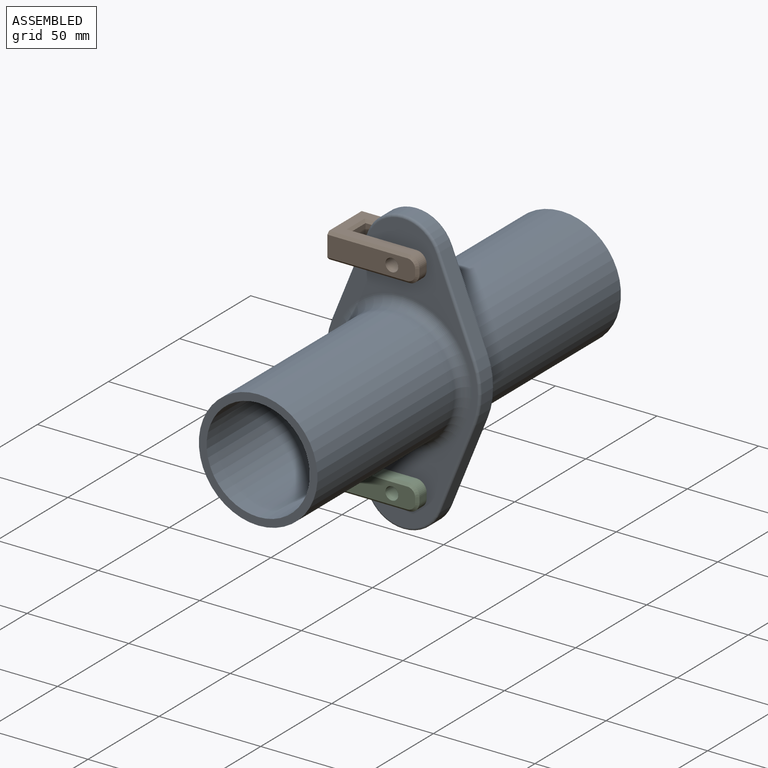
[diagram: assembled view]
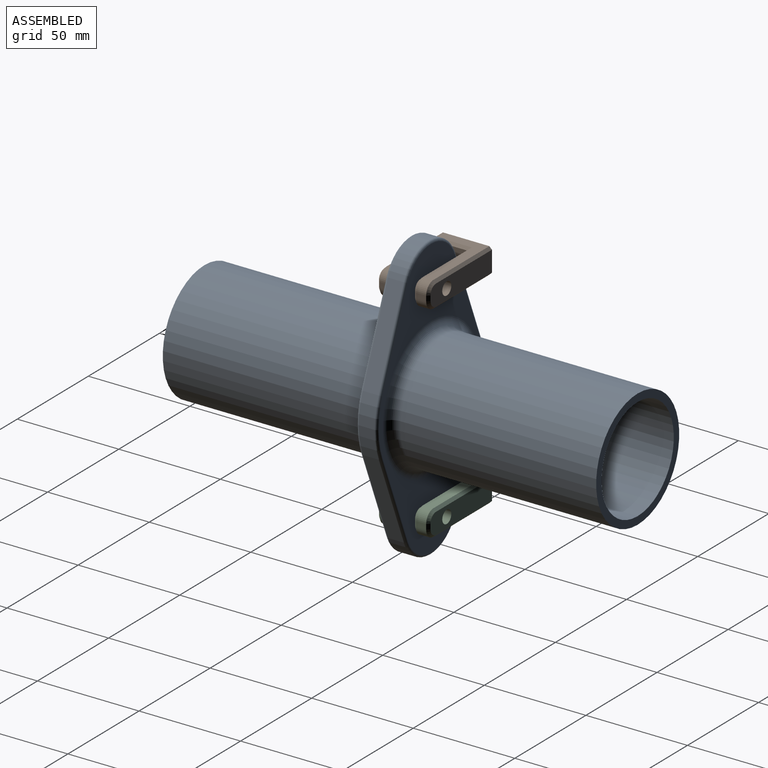
[diagram: assembled view, second angle]
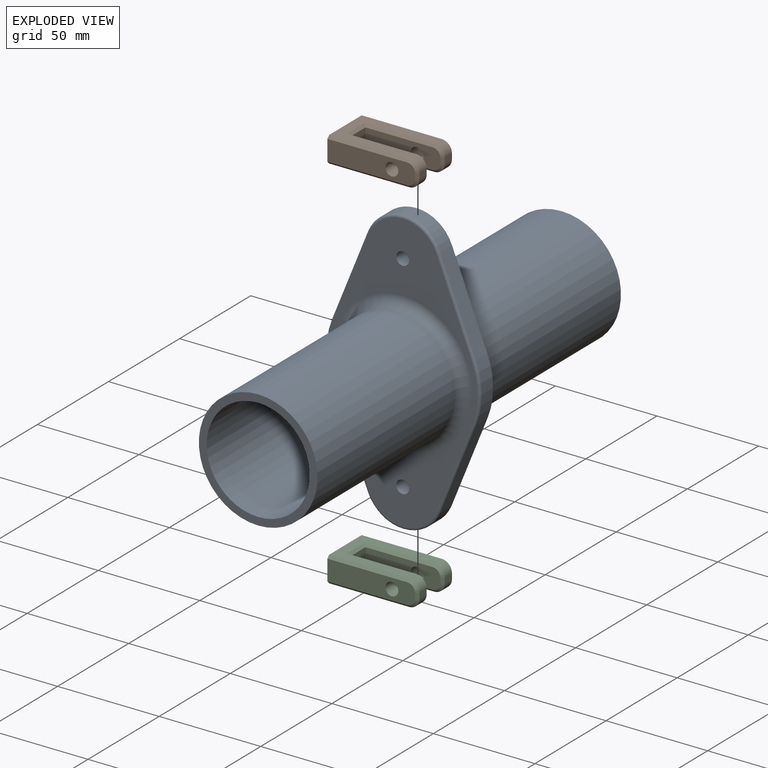
[diagram: exploded view]
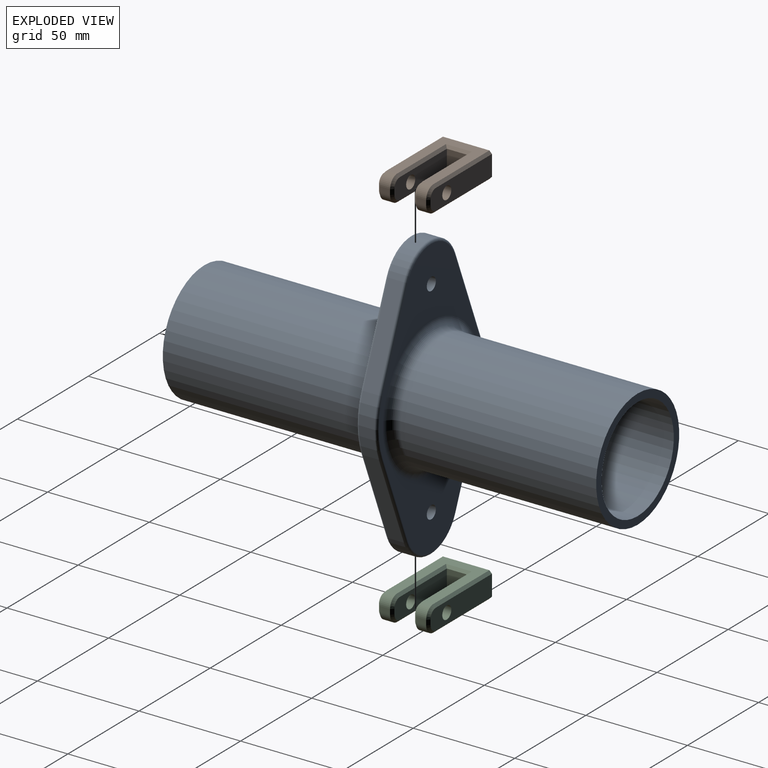
[diagram: exploded view, second angle]
ASSEMBLY  parts=3 mates=2
PART A: 35 faces, bbox 82.5x213.4x142.8 mm
  f0: plane 43.66x17.66mm, normal (-0.93,0,0.37), area 358.8mm2, adj f1,f10,f14,f22
  f1: cylinder r=38.1mm len=28.58mm, axis (0,1,0), area 223.2mm2, adj f0,f2,f16,f24
  f2: plane 43.66x17.66mm, normal (-0.93,0,-0.37), area 358.8mm2, adj f1,f3,f18,f26
  f3: cylinder r=19.05mm len=35.32mm, axis (0,1,0), area 344.4mm2, adj f2,f4,f20,f28
  f4: plane 43.66x17.66mm, normal (0.93,0,-0.37), area 358.8mm2, adj f3,f5,f19,f27
  f5: cylinder r=38.1mm len=28.58mm, axis (0,1,0), area 223.2mm2, adj f4,f6,f17,f25
  f6: plane 43.66x17.66mm, normal (0.93,0,0.37), area 358.8mm2, adj f5,f10,f15,f23
  f7: cylinder r=3.17mm len=10.16mm, axis (0,1,0), area 202.7mm2, adj f11,f12
  f8: cylinder r=3.17mm len=10.16mm, axis (0,1,0), area 202.7mm2, adj f11,f12
  f9: cylinder r=25.4mm len=213.36mm, axis (0,1,0), area 34050.7mm2, adj f30,f33
  f10: cylinder r=19.05mm len=35.32mm, axis (0,1,0), area 344.4mm2, adj f0,f6,f13,f21
  f11: plane 137.16x73.66mm, normal (0,-1,0), area 3179.2mm2, adj f7,f8,f13,f14,f15,f16,f17,f18
  f12: plane 137.16x73.66mm, normal (0,1,0), area 3179.2mm2, adj f7,f8,f21,f22,f23,f24,f25,f26
  f13: torus R=17.78mm, axis (0,-1,0), area 88mm2, adj f10,f11,f14,f15
  f14: cylinder r=1.27mm len=44.13mm, axis (0.37,0,0.93), area 93.9mm2, adj f0,f11,f13,f16
  f15: cylinder r=1.27mm len=44.13mm, axis (0.37,0,-0.93), area 93.9mm2, adj f6,f11,f13,f17
  f16: torus R=36.83mm, axis (0,-1,0), area 57.7mm2, adj f1,f11,f14,f18
  f17: torus R=36.83mm, axis (0,-1,0), area 57.7mm2, adj f5,f11,f15,f19
  f18: cylinder r=1.27mm len=44.13mm, axis (-0.37,0,0.93), area 93.9mm2, adj f2,f11,f16,f20
  f19: cylinder r=1.27mm len=44.13mm, axis (-0.37,0,-0.93), area 93.9mm2, adj f4,f11,f17,f20
  f20: torus R=17.78mm, axis (0,-1,0), area 88mm2, adj f3,f11,f18,f19
  f21: torus R=17.78mm, axis (0,-1,0), area 88mm2, adj f10,f12,f22,f23
  f22: cylinder r=1.27mm len=44.13mm, axis (-0.37,0,-0.93), area 93.9mm2, adj f0,f12,f21,f24
  f23: cylinder r=1.27mm len=44.13mm, axis (-0.37,0,0.93), area 93.9mm2, adj f6,f12,f21,f25
  f24: torus R=36.83mm, axis (0,-1,0), area 57.7mm2, adj f1,f12,f22,f26
  f25: torus R=36.83mm, axis (0,-1,0), area 57.7mm2, adj f5,f12,f23,f27
  f26: cylinder r=1.27mm len=44.13mm, axis (0.37,0,-0.93), area 93.9mm2, adj f2,f12,f24,f28
  f27: cylinder r=1.27mm len=44.13mm, axis (0.37,0,0.93), area 93.9mm2, adj f4,f12,f25,f28
  f28: torus R=17.78mm, axis (0,-1,0), area 88mm2, adj f3,f12,f26,f27
  f29: cylinder r=29.21mm len=96.52mm, axis (0,1,0), area 17714.5mm2, adj f30,f31
  f30: plane 58.42x58.42mm, normal (0,-1,0), area 653.7mm2, adj f9,f29
  f31: torus R=34.29mm, axis (0,-1,0), area 1557.1mm2, adj f11,f29
  f32: cylinder r=29.21mm len=96.52mm, axis (0,-1,0), area 17714.5mm2, adj f33,f34
  f33: plane 58.42x58.42mm, normal (0,1,0), area 653.7mm2, adj f9,f32
  f34: torus R=34.29mm, axis (0,-1,0), area 1557.1mm2, adj f12,f32
PART B: 38 faces, bbox 44.5x25.4x12.7 mm
  f0: plane 10.16x10.16mm, normal (1,0,0), area 103.2mm2, adj f6,f8,f17,f26
  f1: plane 43.18x10.16mm, normal (0,1,0), area 400.8mm2, adj f5,f10,f28,f29,f30,f31,f32
  f2: plane 39.37x22.86mm, normal (0,0,1), area 464.5mm2, adj f5,f12,f14,f16,f17,f19,f28,f33
  f3: plane 43.18x10.16mm, normal (0,-1,0), area 400.8mm2, adj f5,f11,f33,f34,f35,f36,f37
  f4: plane 39.37x22.86mm, normal (0,0,-1), area 464.5mm2, adj f5,f13,f15,f24,f26,f27,f32,f37
  f5: plane 25.4x12.7mm, normal (-1,0,0), area 319.4mm2, adj f1,f2,f3,f4,f28,f32,f33,f37
  f6: plane 36.83x10.16mm, normal (0,1,0), area 336.3mm2, adj f0,f11,f19,f21,f23,f25,f27
  f7: plane 5.08x2.54mm, normal (1,0,0), area 12.9mm2, adj f14,f15,f23,f35
  f8: plane 36.83x10.16mm, normal (0,-1,0), area 336.3mm2, adj f0,f10,f16,f18,f20,f22,f24
  f9: plane 5.08x2.54mm, normal (1,0,0), area 12.9mm2, adj f12,f13,f20,f30
  f10: cylinder r=3.17mm len=7.62mm, axis (0,-1,0), area 152mm2, adj f1,f8
  f11: cylinder r=3.17mm len=7.62mm, axis (0,-1,0), area 152mm2, adj f3,f6
  f12: cylinder r=5.08mm len=5.08mm, axis (0,-1,0), area 40.5mm2, adj f2,f9,f18,f29
  f13: cylinder r=5.08mm len=5.08mm, axis (0,1,0), area 40.5mm2, adj f4,f9,f22,f31
  f14: cylinder r=5.08mm len=5.08mm, axis (0,-1,0), area 40.5mm2, adj f2,f7,f21,f34
  f15: cylinder r=5.08mm len=5.08mm, axis (0,1,0), area 40.5mm2, adj f4,f7,f25,f36
  f16: plane 34.29x1.27mm, normal (0,-0.71,0.71), area 60.4mm2, adj f2,f8,f17,f18
  f17: plane 12.7x1.27mm, normal (0.71,0,0.71), area 20.5mm2, adj f0,f2,f16,f19
  f18: cone r=3.81mm half-angle=45deg, axis (0,1,0), area 12.5mm2, adj f8,f12,f16,f20
  f19: plane 34.29x1.27mm, normal (0,0.71,0.71), area 60.4mm2, adj f2,f6,f17,f21
  f20: plane 2.54x1.27mm, normal (0.71,-0.71,0), area 4.6mm2, adj f8,f9,f18,f22
  f21: cone r=3.81mm half-angle=45deg, axis (0,-1,0), area 12.5mm2, adj f6,f14,f19,f23
  f22: cone r=3.81mm half-angle=45deg, axis (0,1,0), area 12.5mm2, adj f8,f13,f20,f24
  f23: plane 2.54x1.27mm, normal (0.71,0.71,0), area 4.6mm2, adj f6,f7,f21,f25
  f24: plane 34.29x1.27mm, normal (0,-0.71,-0.71), area 60.4mm2, adj f4,f8,f22,f26
  f25: cone r=3.81mm half-angle=45deg, axis (0,-1,0), area 12.5mm2, adj f6,f15,f23,f27
  f26: plane 12.7x1.27mm, normal (0.71,0,-0.71), area 20.5mm2, adj f0,f4,f24,f27
  f27: plane 34.29x1.27mm, normal (0,0.71,-0.71), area 60.4mm2, adj f4,f6,f25,f26
  f28: plane 39.37x1.27mm, normal (0,0.71,0.71), area 70.7mm2, adj f1,f2,f5,f29
  f29: cone r=3.81mm half-angle=45deg, axis (0,-1,0), area 12.5mm2, adj f1,f12,f28,f30
  f30: plane 2.54x1.27mm, normal (0.71,0.71,0), area 4.6mm2, adj f1,f9,f29,f31
  f31: cone r=3.81mm half-angle=45deg, axis (0,-1,0), area 12.5mm2, adj f1,f13,f30,f32
  f32: plane 39.37x1.27mm, normal (0,0.71,-0.71), area 70.7mm2, adj f1,f4,f5,f31
  f33: plane 39.37x1.27mm, normal (0,-0.71,0.71), area 70.7mm2, adj f2,f3,f5,f34
  f34: cone r=3.81mm half-angle=45deg, axis (0,1,0), area 12.5mm2, adj f3,f14,f33,f35
  f35: plane 2.54x1.27mm, normal (0.71,-0.71,0), area 4.6mm2, adj f3,f7,f34,f36
  f36: cone r=3.81mm half-angle=45deg, axis (0,1,0), area 12.5mm2, adj f3,f15,f35,f37
  f37: plane 39.37x1.27mm, normal (0,-0.71,-0.71), area 70.7mm2, adj f3,f4,f5,f36
PART C: same geometry as B
PLACE A t=(-130.02,-47.11,-8.23)mm
PLACE B t=(-155.42,-52.19,42.57)mm
PLACE C t=(-155.42,-52.19,-59.03)mm
MATE planar C.f10 <-> A.f8  axis (0,-1,0) through (-130.02,-47.11,-59.03)mm
MATE planar A.f7 <-> B.f10  axis (0,-1,0) through (-130.02,-57.27,42.57)mm
